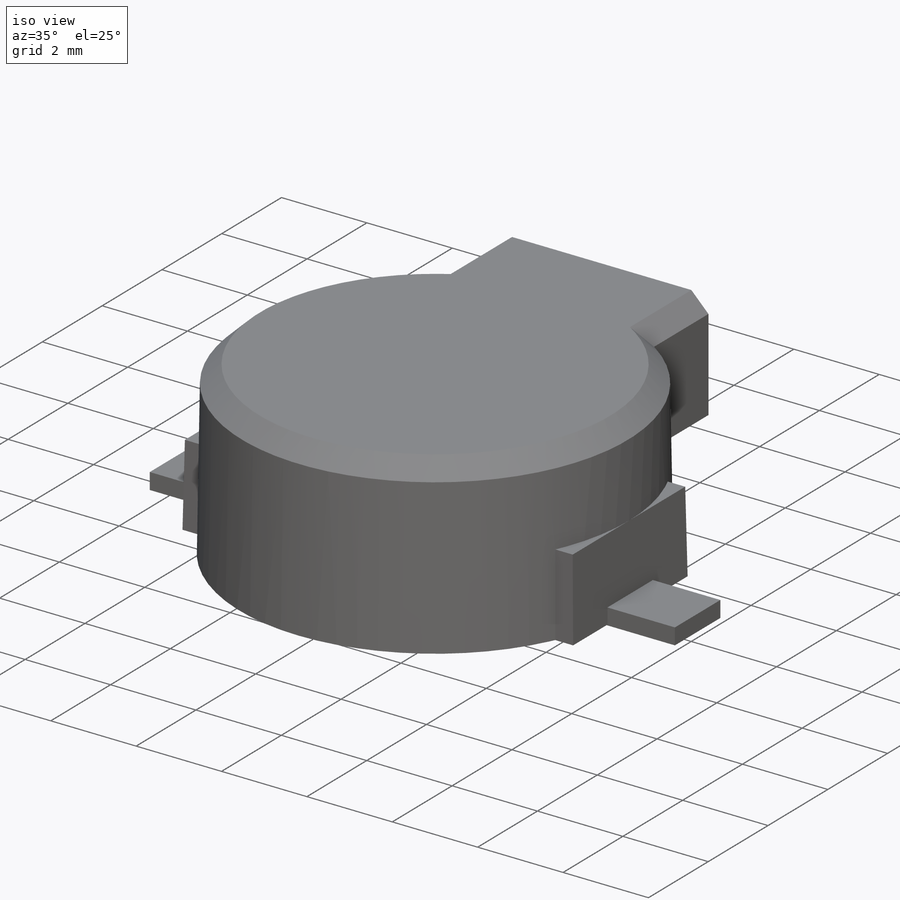
[diagram: iso view]
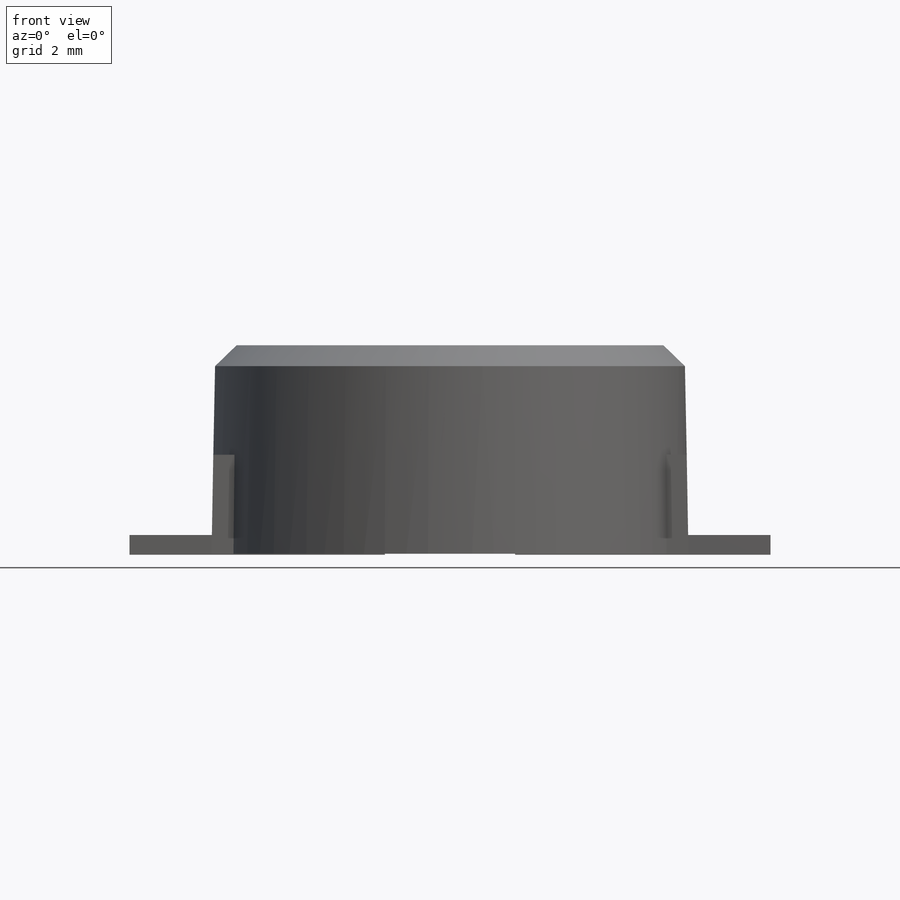
[diagram: front view]
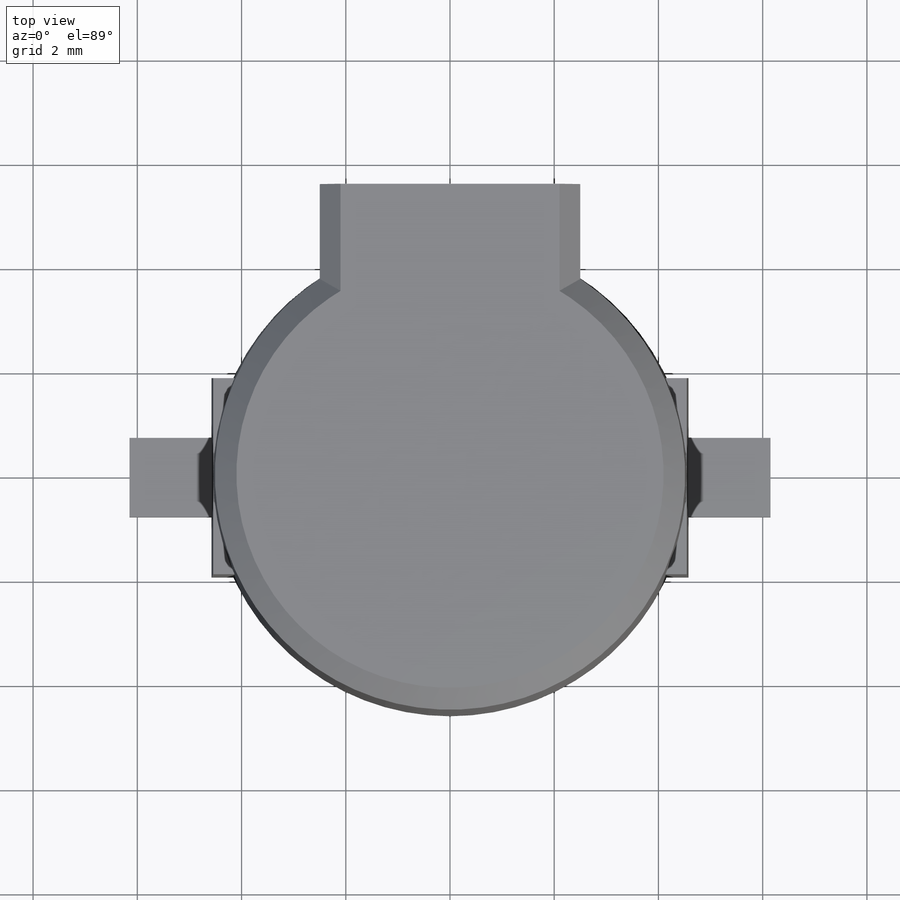
[diagram: top view]
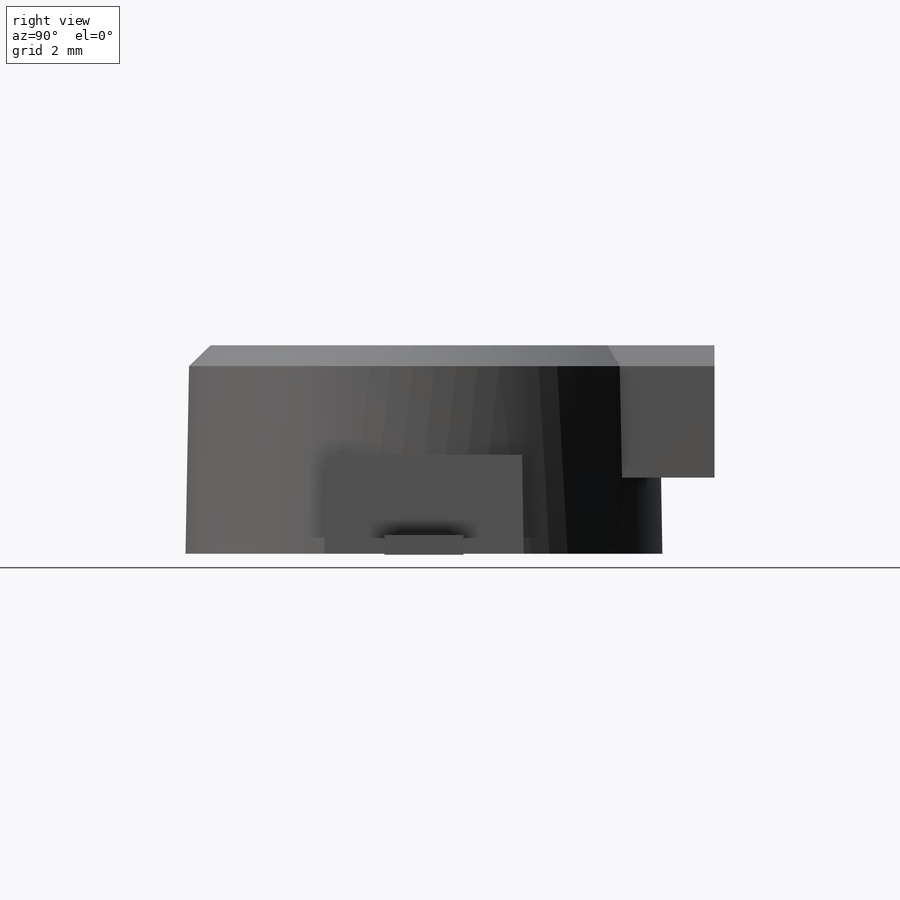
[diagram: right view]
SOLIDWORKS PART (.sldprt)
format: sldprt  version: not decoded by parser v0  size: 266,240 bytes
history: native  units: mm
features: sketch x7, extrude x4, cut_extrude x2, material x1, chamfer x1 (+12 scaffold rows collapsed)
feature tree (27):
  scaffold x12  (default folders/planes/origin — collapsed)
  material  "Material <not specified>"
  sketch  "Sketch1"  dims[D1=9.15mm]
  extrude  "Extrude1"  Depth=4mm
  sketch  "Sketch2"  dims[D1=3.83mm]
  extrude  "Extrude2"  Depth=1.9mm
  sketch  "Sketch3"  dims[D1=5.0mm D2=5.575mm]
  extrude  "Extrude3"  Depth=1.46mm
  sketch  "Sketch4"  dims[D1=0.4mm D2=0.35mm]
  cut_extrude  "Cut-Extrude1"  [1 undecoded]
  sketch  "Sketch5"  dims[D1=3.5mm D2=0.7mm D3=0.5mm]
  cut_extrude  "Cut-Extrude2"  [1 undecoded]
  chamfer  "Chamfer1"  Distance=0.4mm Angle=45deg
  sketch  "Sketch6"  dims[D1=1.52mm D2=2.5mm D3=12.3mm]
  extrude  "Extrude4"  Depth=0.36mm
  sketch  "Component_Outline"
decode coverage: 11 of 14 modeling features carry decoded parameters
note: 2 parameter values undecoded
note: suppression state not decoded; provenance and decode notes live in map.json
